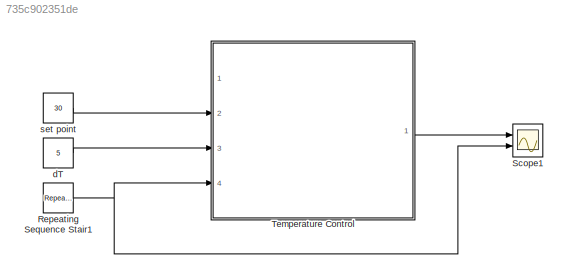
MODEL slx_735c902351de
KIND model
CONFIG AbsTol = auto
CONFIG EnableMultiTasking = off
CONFIG FixedStep = auto
CONFIG MaxStep = auto
CONFIG MinStep = auto
CONFIG RelTol = 1e-3
CONFIG SampleTimeConstraint = Unconstrained
CONFIG SolverName = VariableStepAuto
CONFIG StartTime = 0.0
CONFIG StopTime = 10.0
BLOCK [Reference] Repeating Sequence Stair1  REF=simulink/Sources/Repeating
Sequence
Stair
  Ports = [0, 1]
  SourceBlock = simulink/Sources/Repeating\nSequence\nStair
  SourceProductBaseCode = SL
  SourceType = Repeating Sequence Stair
BLOCK [Scope] Scope1
  Floating = off
  NumInputPorts = 2
  Ports = [2]
  ScopeSpecificationString = Simulink.scopes.TimeScopeBlockCfg('CurrentConfiguration', extmgr.ConfigurationSet(extmgr.Configuration('Core','General UI',true),extmgr.Configuration('Core','Source UI',true),extmgr.Configuration('Sources','WiredSimulink',true,'DataLoggingVariableName','ScopeData1'),extmgr.Configuration('Visuals','Time Domain',true,'SerializedDisplays',{struct('MinYLimReal','-7.375','MaxYLimReal','56.375','YLabelR...<+1426ch>
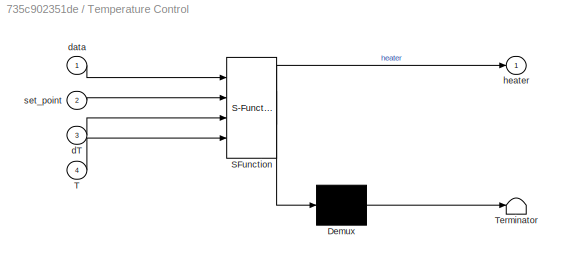
BLOCK [SubSystem] Temperature Control
  ErrorFcn = Stateflow.Translate.translate
  PermitHierarchicalResolution = ExplicitOnly
  Ports = [4, 1]
  RequestExecContextInheritance = off
  SFBlockType = Chart
  TreatAsAtomicUnit = on
BLOCK [Demux] Temperature Control/ Demux 
  Outputs = 1
  Ports = [1, 1]
BLOCK [S-Function] Temperature Control/ SFunction 
  EnableBusSupport = on
  FunctionName = sf_sfun
  PortCounts = [4 2]
  Ports = [4, 2]
  SFcnIsStateOwnerBlock = off
  SFunctionDeploymentMode = off
  Tag = Stateflow S-Function 1
BLOCK [Terminator] Temperature Control/ Terminator 
BLOCK [Inport] Temperature Control/T
  Port = 4
BLOCK [Inport] Temperature Control/dT
  Port = 3
BLOCK [Inport] Temperature Control/data
BLOCK [Outport] Temperature Control/heater
BLOCK [Inport] Temperature Control/set_point
  Port = 2
BLOCK [Constant] dT
  Value = 5
BLOCK [Constant] set point
  Value = 30
NET Repeating Sequence Stair1:1 -> Scope1:2, Temperature Control:4
LINE Temperature Control:1 -> Scope1:1
LINE dT:1 -> Temperature Control:3
LINE set point:1 -> Temperature Control:2
note: NET lines group one-source signal fan-out (src -> all destinations, sorted); 1:1 wires keep LINE
CHART Temperature Control states=3 transitions=5
  STATE_LABEL 'off\nentry: heater = 0\n'
  STATE_LABEL 'Cool\nentry: heater = -1'
  STATE_LABEL 'Heat\nentry: heater = 1'
CHART  states=0 transitions=0
